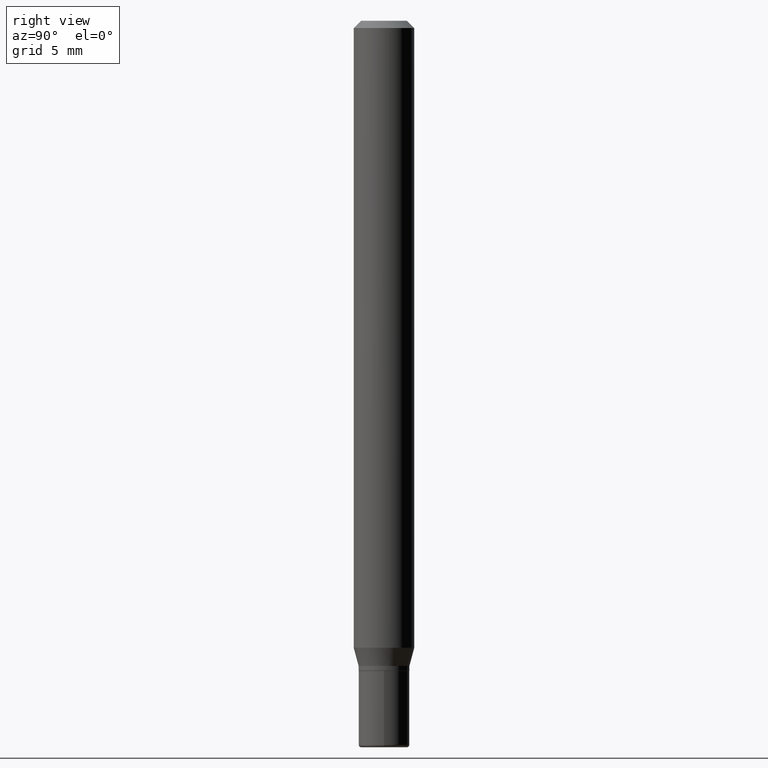
[diagram: clean part render]
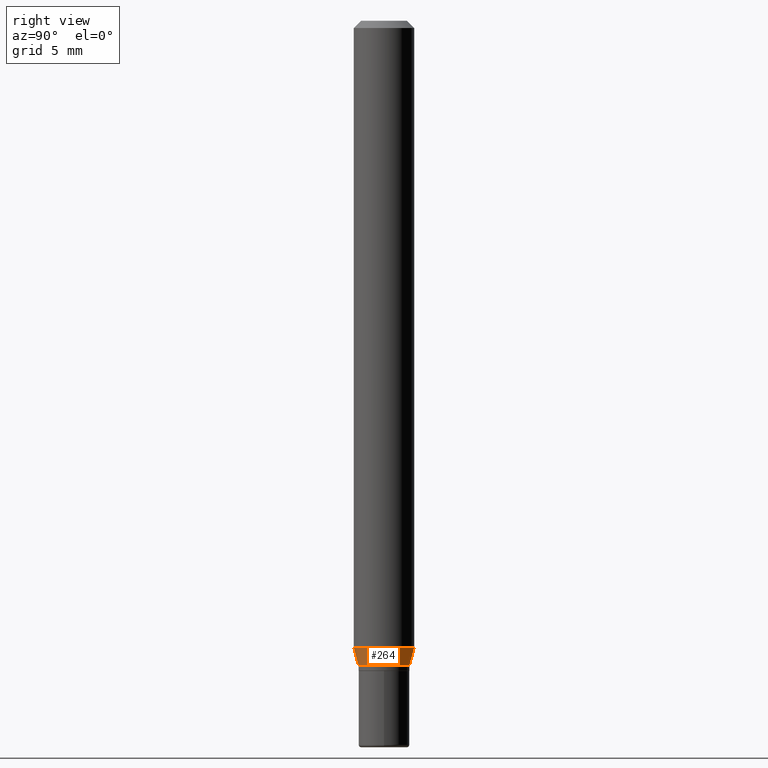
[diagram: same view with one face highlighted and labeled with its STEP entity id]
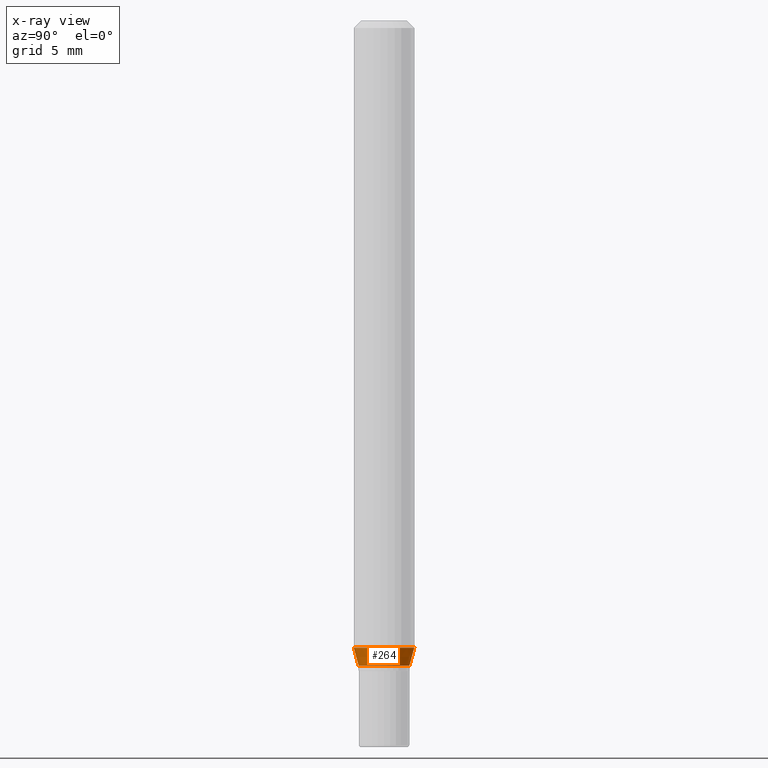
[diagram: x-ray of the same camera — body ghosted, the highlighted face saturated]
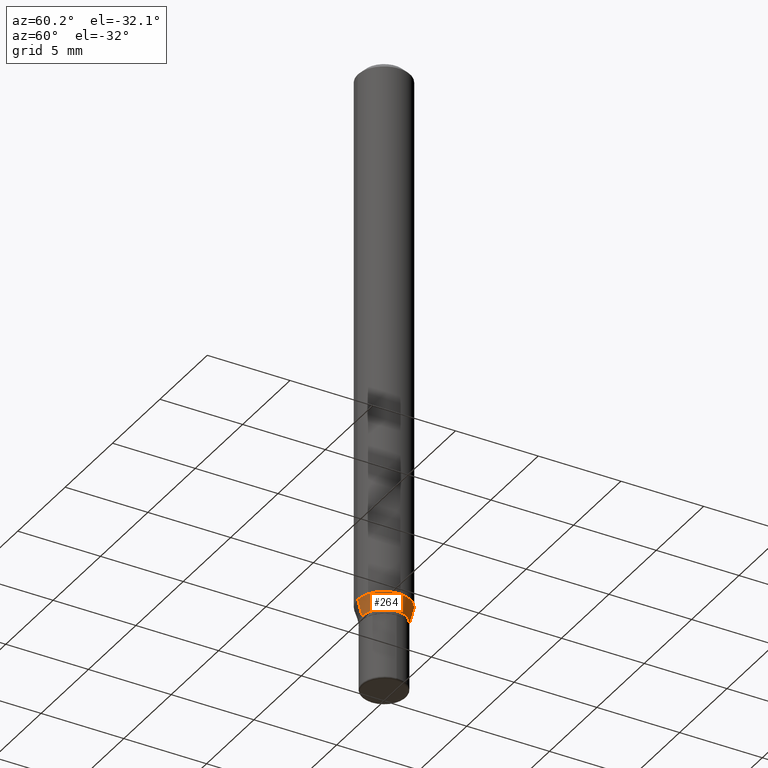
[diagram: same view with one face highlighted and labeled with its STEP entity id]
A machine part, right view. The second image highlights one B-rep face of the part: STEP entity #264.
The next image is the same camera in x-ray: the body ghosted, the highlighted face saturated — about 0% of this face is hidden behind the body in this view.
A second angle (auxiliary view) of the same face is appended — the face is thin or edge-on in the first view.
In plain terms, the highlighted conical surface has half-angle 15 deg.
Its self-contained STEP definition (entity closure, byte-faithful):
#37 = EDGE_CURVE ( 'NONE', #199, #108, #267, .T. ) ;
#41 = DIRECTION ( 'NONE',  ( -6.982962677686265922E-15, -1.000000000000000000, 4.370956789862821150E-15 ) ) ;
#47 = CIRCLE ( 'NONE', #161, 0.06250000000000000000 ) ;
#55 = EDGE_CURVE ( 'NONE', #469, #108, #47, .T. ) ;
#56 = ORIENTED_EDGE ( 'NONE', *, *, #305, .T. ) ;
#90 = VECTOR ( 'NONE', #510, 39.37007874015748854 ) ;
#94 = FACE_OUTER_BOUND ( 'NONE', #244, .T. ) ;
#102 = CARTESIAN_POINT ( 'NONE',  ( 3.257522127807935994E-29, -4.650427339512513741E-15, -1.332000000000000517 ) ) ;
#107 = CARTESIAN_POINT ( 'NONE',  ( 3.730349362740858638E-16, 0.05249999999999545308, -1.332000000000000739 ) ) ;
#108 = VERTEX_POINT ( 'NONE', #432 ) ;
#135 = CARTESIAN_POINT ( 'NONE',  ( 3.257522127807935994E-29, -4.650427339512513741E-15, -1.332000000000000517 ) ) ;
#161 = AXIS2_PLACEMENT_3D ( 'NONE', #513, #343, #41 ) ;
#163 = AXIS2_PLACEMENT_3D ( 'NONE', #135, #184, #256 ) ;
#184 = DIRECTION ( 'NONE',  ( -2.445587183038990238E-29, 3.491311816450835107E-15, 1.000000000000000000 ) ) ;
#189 = DIRECTION ( 'NONE',  ( 1.839019923739593216E-15, 0.2588190451025239591, 0.9659258262890673130 ) ) ;
#199 = VERTEX_POINT ( 'NONE', #437 ) ;
#235 = VECTOR ( 'NONE', #189, 39.37007874015748854 ) ;
#244 = EDGE_LOOP ( 'NONE', ( #56, #502, #410, #466 ) ) ;
#256 = DIRECTION ( 'NONE',  ( -6.982962677686265922E-15, -1.000000000000000000, 5.203519987931918896E-15 ) ) ;
#260 = DIRECTION ( 'NONE',  ( -2.445587183038990238E-29, 3.491311816450835107E-15, 1.000000000000000000 ) ) ;
#264 = ADVANCED_FACE ( 'NONE', ( #94 ), #378, .T. ) ;
#266 = DIRECTION ( 'NONE',  ( -6.982962677686265922E-15, -1.000000000000000000, 5.203519987931918896E-15 ) ) ;
#267 = LINE ( 'NONE', #107, #235 ) ;
#302 = EDGE_CURVE ( 'NONE', #413, #469, #504, .T. ) ;
#305 = EDGE_CURVE ( 'NONE', #413, #199, #497, .T. ) ;
#334 = CARTESIAN_POINT ( 'NONE',  ( -3.666055405784971126E-16, -0.05250000000000475814, -1.332000000000000073 ) ) ;
#336 = CARTESIAN_POINT ( 'NONE',  ( -3.666055405784971126E-16, -0.05250000000000475814, -1.332000000000000073 ) ) ;
#343 = DIRECTION ( 'NONE',  ( -2.445587183038990238E-29, 3.491311816450835107E-15, 1.000000000000000000 ) ) ;
#347 = CARTESIAN_POINT ( 'NONE',  ( -4.364351673553597698E-16, -0.06250000000000449640, -1.294679491924311865 ) ) ;
#378 = CONICAL_SURFACE ( 'NONE', #163, 0.05250000000000010908, 0.2617993877991492968 ) ;
#405 = AXIS2_PLACEMENT_3D ( 'NONE', #102, #260, #266 ) ;
#410 = ORIENTED_EDGE ( 'NONE', *, *, #55, .F. ) ;
#413 = VERTEX_POINT ( 'NONE', #336 ) ;
#432 = CARTESIAN_POINT ( 'NONE',  ( 4.440892098500943678E-16, 0.06249999999999550360, -1.294679491924312309 ) ) ;
#437 = CARTESIAN_POINT ( 'NONE',  ( 4.085620730620901158E-16, 0.05249999999999545308, -1.332000000000000739 ) ) ;
#466 = ORIENTED_EDGE ( 'NONE', *, *, #302, .F. ) ;
#469 = VERTEX_POINT ( 'NONE', #347 ) ;
#497 = CIRCLE ( 'NONE', #405, 0.05250000000000010908 ) ;
#502 = ORIENTED_EDGE ( 'NONE', *, *, #37, .T. ) ;
#504 = LINE ( 'NONE', #334, #90 ) ;
#510 = DIRECTION ( 'NONE',  ( -1.807323732225323434E-15, -0.2588190451025172423, 0.9659258262890693114 ) ) ;
#513 = CARTESIAN_POINT ( 'NONE',  ( 3.166251571593529273E-29, -4.520129808671913601E-15, -1.294679491924312087 ) ) ;